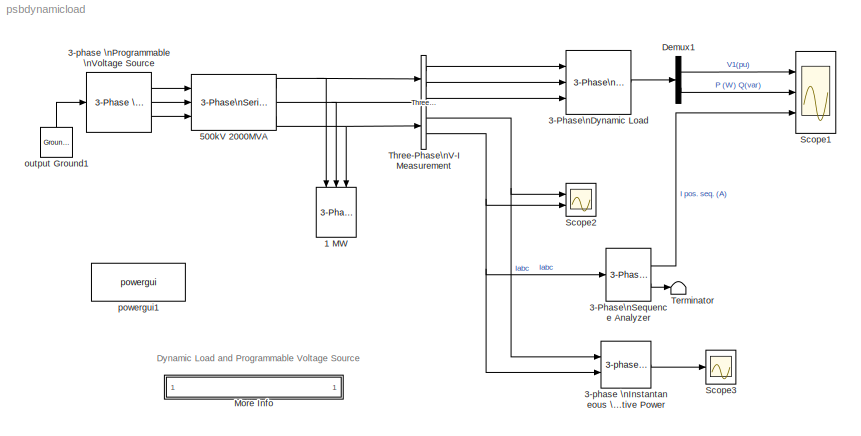
MODEL psbdynamicload
KIND model
CONFIG InitFcn = powericon('psbinitsys',bdroot);
BLOCK [Reference] 1 MW  REF=powerlib2/Elements/3-Phase\nSeries RLC Load
  P3 = 1e6
  Ports = [3]
  QC3 = 0
  QL3 = 0
  SourceBlock = powerlib2/Elements/3-Phase\nSeries RLC Load
  SourceType = 3-phase series RLC load
  Vpp = 500e3
  fn = 60
BLOCK [Reference] 3-Phase\nDynamic Load  REF=powerlib2/Elements/3-Phase\nDynamic Load
  LoadFlowParameters = [4 50000000 0 0 25000000]
  PQ_0 = [5e+007 2.5e+007]
  PQext = off
  Ports = [3, 1]
  SourceBlock = powerlib2/Elements/3-Phase\nDynamic Load
  SourceType = Three-Phase Dynamic Load
  Tpq = [0  0  0  0]
  V0 = [0.98441 -1.41063]
  Vfnom = [ 500e3 60 ]
  Vmin = 0.7
  n = [1  1]
BLOCK [Reference] 3-Phase\nSequence Analyzer  REF=powerlib_extras/Measurements/3-Phase\nSequence Analyzer
  Ports = [1, 2]
  SourceBlock = powerlib_extras/Measurements/3-Phase\nSequence Analyzer
  SourceType = 3-Phase Sequence analyzer
  f1 = 60
  n = 1
  seq = Positive
BLOCK [Reference] 3-phase \nInstantaneous \nActive & Reactive Power  REF=powerlib_extras/Measurements/3-phase \nInstantaneous \nActive & Reactive Power
  AncestorBlock = powerlib_extras/Discrete\nMeasurements/3-phase\nInstantaneous \nActive and Reactive\nPower Computation
  Ports = [2, 1]
  SourceBlock = powerlib_extras/Measurements/3-phase \nInstantaneous \nActive & Reactive Power
  SourceType = 3-phase instantaneous active and reactive power
BLOCK [Reference] 3-phase \nProgrammable \nVoltage Source  REF=powerlib2/Electrical\nSources/3-Phase \nProgrammable \nVoltage Source
  HarmonicGeneration = off
  Par_HarmoA_pu = [3 0.2 -25 0]
  Par_HarmoB_pu = [2 0.15  35 2]
  Par_Timing_Harmo = [0.05  3]
  Par_Timing_Variation = [0.2 1.2]
  Par_Vps_LLrms = [500e3 0  60]
  Ports = [1, 3]
  SinglePhase = off
  SourceBlock = powerlib2/Electrical\nSources/3-Phase \nProgrammable \nVoltage Source
  SourceType = 3-phase Programmable Voltage Source
  VariationEntity = Amplitude
  VariationFreq = 1
  VariationMag = 0.5
  VariationRate = 10
  VariationStep = -0.5
  VariationType = Modulation
  Xtime = [0 0.1 0.15 0.2]
  Yampli = [1 0.8 1.2 1.0]
BLOCK [Reference] 500kV 2000MVA  REF=powerlib2/Elements/3-Phase\nSeries RLC Branch 
  C = inf
  L = 500^2/2000/377
  Ports = [3, 3]
  R = 500^2/2000/10
  SourceBlock = powerlib2/Elements/3-Phase\nSeries RLC Branch
  SourceType = 3-phase RLC series element
BLOCK [Demux] Demux1
  Outputs = [1 2]
  Ports = [1, 2]
BLOCK [SubSystem] More Info
  MaskDisplay = disp('? : Double click here for more info')
  MaskIconFrame = off
  MaskIconOpaque = on
  MaskIconRotate = none
  MaskIconUnits = autoscale
  MinAlgLoopOccurrences = off
  Ports = []
  RTWSystemCode = Auto
  TreatAsAtomicUnit = off
BLOCK [Scope] Scope1
  DataFormat = StructureWithTime
  LimitDataPoints = off
  NumInputPorts = 3
  Ports = [3]
  SaveName = ScopeData1
  TimeRange = 1.4
  YMax = 1.5~80000000~95
  YMin = 0.4000000000000001~5000000~62.5
  ZoomMode = yonly
BLOCK [Scope] Scope2
  DataFormat = StructureWithTime
  LimitDataPoints = off
  NumInputPorts = 2
  Ports = [2]
  TimeRange = 1.4
  YMax = 1000000~100
  YMin = -1000000~-100
  ZoomMode = xonly
BLOCK [Scope] Scope3
  DataFormat = StructureWithTime
  LimitDataPoints = off
  NumInputPorts = 1
  Ports = [1]
  SaveName = ScopeData3
  TimeRange = 1.4
  YMax = 80000000
  YMin = 0
  ZoomMode = yonly
BLOCK [Terminator] Terminator
BLOCK [Reference] Three-Phase\nV-I Measurement  REF=powerlib2/Measurements/Three-Phase\nV-I Measurement
  IChoice = yes
  OutputType = Magnitude
  PSBOutputType = 11100
  PSBequivalent = 1
  Pbase = 100e6
  PhasorSimulation = off
  Ports = [3, 5]
  Ppu = off
  SourceBlock = powerlib2/Measurements/Three-Phase\nV-I Measurement
  SourceType = 3-Phase VI Measurement
  Tag = PoWeRsYsTeMmEaSuReMeNt
  VChoice = phase-to-ground
  Vbase = 500e3
  Vpu = off
  labelC = I1
  labelV = V1
  ualc = off
  ualv = off
BLOCK [Reference] output Ground1  REF=powerlib2/Connectors/Ground (output)
  PSBOutputType = 1
  Ports = [0, 1]
  SourceBlock = powerlib2/Connectors/Ground (output)
  SourceType = Ground
  Tag = PoWeRsYsTeMbLoCk
BLOCK [Reference] powergui1  REF=powerlib2/powergui
  DisplayStyle = off
  Frange = [0:2:500]
  FreqAxis = off
  MaxFrequency = 1000
  Ports = []
  RmsSteady = 2
  SourceBlock = powerlib2/powergui
  SourceType = PSB option menu block
  StartTime = 0.0
  Ts = 0
  Xlog = off
  Ylog = off
  ZoomFFT = on
  cycles = 1
  display = off
  echomessages = off
  frequency = 60
  frequencyindice = 60
  frequencyindicesteady = 1
  fundamental = 60
  methode = off
  save = off
  variable = ZData
ANNOTATION (root): Dynamic Load and Programmable Voltage Source
ANNOTATION More Info: 1. Initializing the dynamic load
ANNOTATION More Info: 2. Simulating the voltage swing
ANNOTATION More Info: A dynamic load is connected on a 500 kV, 60 Hz power network . The network is simulated by its Thevenin equivalent (voltage source behind a R-L impedance \ncorresponding to a 3-phase short circuit level of 2000 MVA). The source internal voltage is modulated in order to simulate voltage variation during a power swing. \nAs the dymamic load is a nonlinear model simulated by current sources, it canno...<+1530ch>
ANNOTATION More Info: Circuit Description
ANNOTATION More Info: Demonstration
ANNOTATION More Info: G. Sybille (Hydro-Quebec)
ANNOTATION More Info: In order to start the simulation in steady-state you have to specify the correct initial voltage Vo (magnitude and phase) corresponding to desired Po and Qo\nvalues. You will now use the 'Load Flow' utility to find this voltage and initialize the dynamic load.\n\nOpen the Powergui and select 'Load Flow and Machine Initialization' . Specify the desired active power and reactive powers for the Dynam...<+457ch>
ANNOTATION More Info: Start the simulation and observe load voltage, P&Q powers and current on Scope1. Observe that simulation starts in steady state. At t = 0.2 s , when voltage\nmodulation is initiated, P and Q start to increase (trace 2), but, as np and nq are set to 1, the load current (trace 3) stays constant.. When voltage falls below 0.7 pu \nthe load behaves as a constant impedance. Therefore load current follo...<+241ch>
ANNOTATION More Info: This example illustrates use of the 3-Phase Dynamic Load and 3-Phase Programmable Voltage Source blocks
LINE 3-Phase\nDynamic Load:1 -> Demux1:1
LINE 3-Phase\nSequence Analyzer:1 -> Scope1:3
LINE 3-Phase\nSequence Analyzer:2 -> Terminator:1
LINE 3-phase \nInstantaneous \nActive & Reactive Power:1 -> Scope3:1
LINE 3-phase \nProgrammable \nVoltage Source:1 -> 500kV 2000MVA:1
LINE 3-phase \nProgrammable \nVoltage Source:2 -> 500kV 2000MVA:2
LINE 3-phase \nProgrammable \nVoltage Source:3 -> 500kV 2000MVA:3
NET 500kV 2000MVA:1 -> 1 MW:1, Three-Phase\nV-I Measurement:1
NET 500kV 2000MVA:2 -> 1 MW:2, Three-Phase\nV-I Measurement:2
NET 500kV 2000MVA:3 -> 1 MW:3, Three-Phase\nV-I Measurement:3
LINE Demux1:1 -> Scope1:1
LINE Demux1:2 -> Scope1:2
LINE Three-Phase\nV-I Measurement:1 -> 3-Phase\nDynamic Load:1
LINE Three-Phase\nV-I Measurement:2 -> 3-Phase\nDynamic Load:2
LINE Three-Phase\nV-I Measurement:3 -> 3-Phase\nDynamic Load:3
NET Three-Phase\nV-I Measurement:4 -> 3-phase \nInstantaneous \nActive & Reactive Power:1, Scope2:1
NET Three-Phase\nV-I Measurement:5 -> 3-Phase\nSequence Analyzer:1, 3-phase \nInstantaneous \nActive & Reactive Power:2, Scope2:2
LINE output Ground1:1 -> 3-phase \nProgrammable \nVoltage Source:1
note: NET lines group one-source signal fan-out (src -> all destinations, sorted); 1:1 wires keep LINE
